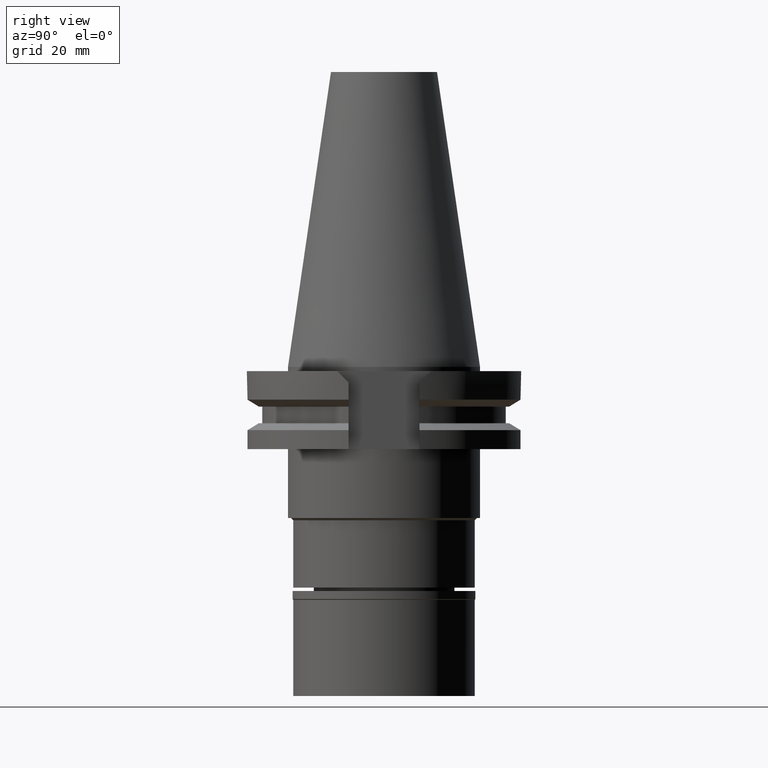
[diagram: clean part render]
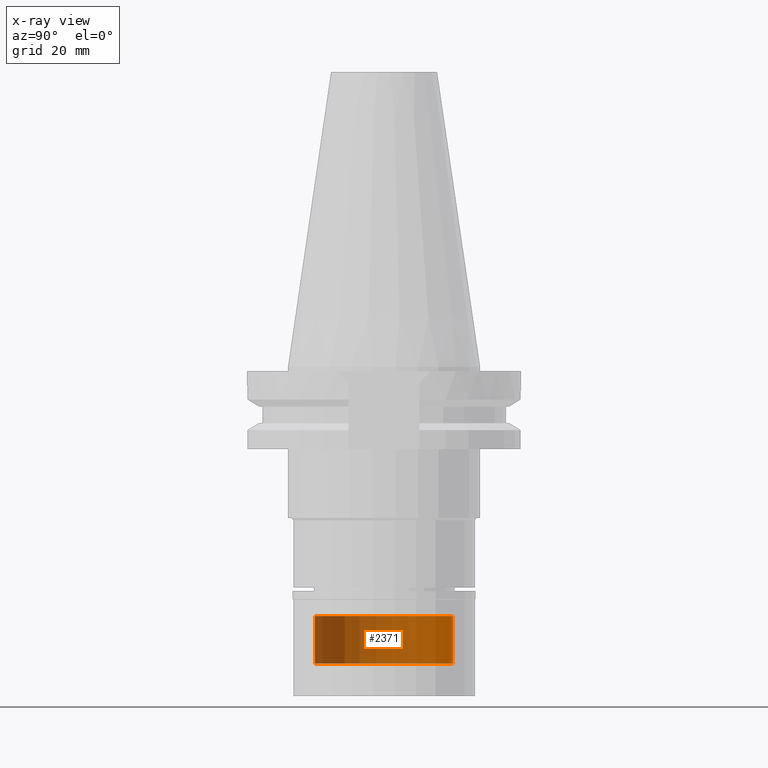
[diagram: x-ray — body ghosted, one internal face saturated and labeled with its STEP entity id]
A machine part, right view, then the same camera in x-ray: the body is ghosted and one INTERNAL B-rep face — a face not visible from any outside direction — is saturated and labeled: STEP entity #2371.
In plain terms, the highlighted cylindrical surface (partial cylindrical patch) has radius 16 mm, axis along (0, 0, -1).
Its self-contained STEP definition (entity closure, byte-faithful):
#47 = CIRCLE ( 'NONE', #2005, 16.00000000000000000 ) ;
#86 = VERTEX_POINT ( 'NONE', #2081 ) ;
#94 = LINE ( 'NONE', #2895, #287 ) ;
#126 = CARTESIAN_POINT ( 'NONE',  ( 0.0000000000000000000, 0.0000000000000000000, -57.70000000000000284 ) ) ;
#280 = CARTESIAN_POINT ( 'NONE',  ( 0.0000000000000000000, -16.00000000000000000, -57.70000000000000284 ) ) ;
#287 = VECTOR ( 'NONE', #3143, 1000.000000000000000 ) ;
#349 = CARTESIAN_POINT ( 'NONE',  ( 0.0000000000000000000, 16.00000000000000000, -68.70000000000000284 ) ) ;
#365 = CYLINDRICAL_SURFACE ( 'NONE', #1553, 16.00000000000000000 ) ;
#386 = DIRECTION ( 'NONE',  ( 0.0000000000000000000, 0.0000000000000000000, -1.000000000000000000 ) ) ;
#520 = CARTESIAN_POINT ( 'NONE',  ( 0.0000000000000000000, 16.00000000000000000, -57.70000000000000284 ) ) ;
#561 = EDGE_CURVE ( 'NONE', #2729, #86, #47, .T. ) ;
#650 = VECTOR ( 'NONE', #1008, 1000.000000000000000 ) ;
#758 = CIRCLE ( 'NONE', #2022, 16.00000000000000000 ) ;
#865 = FACE_OUTER_BOUND ( 'NONE', #2096, .T. ) ;
#902 = ORIENTED_EDGE ( 'NONE', *, *, #1310, .T. ) ;
#1008 = DIRECTION ( 'NONE',  ( 0.0000000000000000000, 0.0000000000000000000, -1.000000000000000000 ) ) ;
#1220 = CARTESIAN_POINT ( 'NONE',  ( 0.0000000000000000000, 0.0000000000000000000, -68.70000000000000284 ) ) ;
#1310 = EDGE_CURVE ( 'NONE', #3085, #2729, #3279, .T. ) ;
#1553 = AXIS2_PLACEMENT_3D ( 'NONE', #2145, #386, #1905 ) ;
#1573 = DIRECTION ( 'NONE',  ( 0.0000000000000000000, 0.0000000000000000000, -1.000000000000000000 ) ) ;
#1646 = ORIENTED_EDGE ( 'NONE', *, *, #2581, .F. ) ;
#1846 = CARTESIAN_POINT ( 'NONE',  ( 0.0000000000000000000, 16.00000000000000000, -57.70000000000000284 ) ) ;
#1905 = DIRECTION ( 'NONE',  ( 0.0000000000000000000, -1.000000000000000000, 0.0000000000000000000 ) ) ;
#2005 = AXIS2_PLACEMENT_3D ( 'NONE', #1220, #2538, #3021 ) ;
#2022 = AXIS2_PLACEMENT_3D ( 'NONE', #126, #1573, #2652 ) ;
#2081 = CARTESIAN_POINT ( 'NONE',  ( 0.0000000000000000000, -16.00000000000000000, -68.70000000000000284 ) ) ;
#2096 = EDGE_LOOP ( 'NONE', ( #3222, #1646, #2965, #902 ) ) ;
#2145 = CARTESIAN_POINT ( 'NONE',  ( 0.0000000000000000000, 0.0000000000000000000, 75.09749999999999659 ) ) ;
#2371 = ADVANCED_FACE ( 'NONE', ( #865 ), #365, .T. ) ;
#2538 = DIRECTION ( 'NONE',  ( 0.0000000000000000000, 0.0000000000000000000, 1.000000000000000000 ) ) ;
#2581 = EDGE_CURVE ( 'NONE', #2972, #86, #94, .T. ) ;
#2652 = DIRECTION ( 'NONE',  ( 0.0000000000000000000, -1.000000000000000000, 0.0000000000000000000 ) ) ;
#2718 = EDGE_CURVE ( 'NONE', #2972, #3085, #758, .T. ) ;
#2729 = VERTEX_POINT ( 'NONE', #349 ) ;
#2895 = CARTESIAN_POINT ( 'NONE',  ( 0.0000000000000000000, -16.00000000000000000, -57.70000000000000284 ) ) ;
#2965 = ORIENTED_EDGE ( 'NONE', *, *, #2718, .T. ) ;
#2972 = VERTEX_POINT ( 'NONE', #280 ) ;
#3021 = DIRECTION ( 'NONE',  ( 0.0000000000000000000, 1.000000000000000000, 0.0000000000000000000 ) ) ;
#3085 = VERTEX_POINT ( 'NONE', #1846 ) ;
#3143 = DIRECTION ( 'NONE',  ( 0.0000000000000000000, 0.0000000000000000000, -1.000000000000000000 ) ) ;
#3222 = ORIENTED_EDGE ( 'NONE', *, *, #561, .T. ) ;
#3279 = LINE ( 'NONE', #520, #650 ) ;